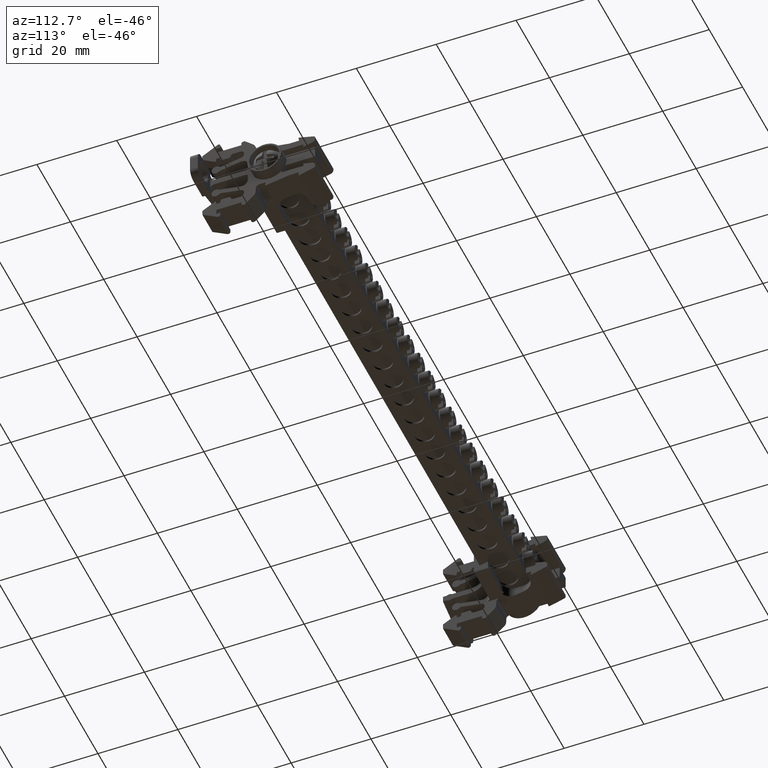
[diagram: clean part render]
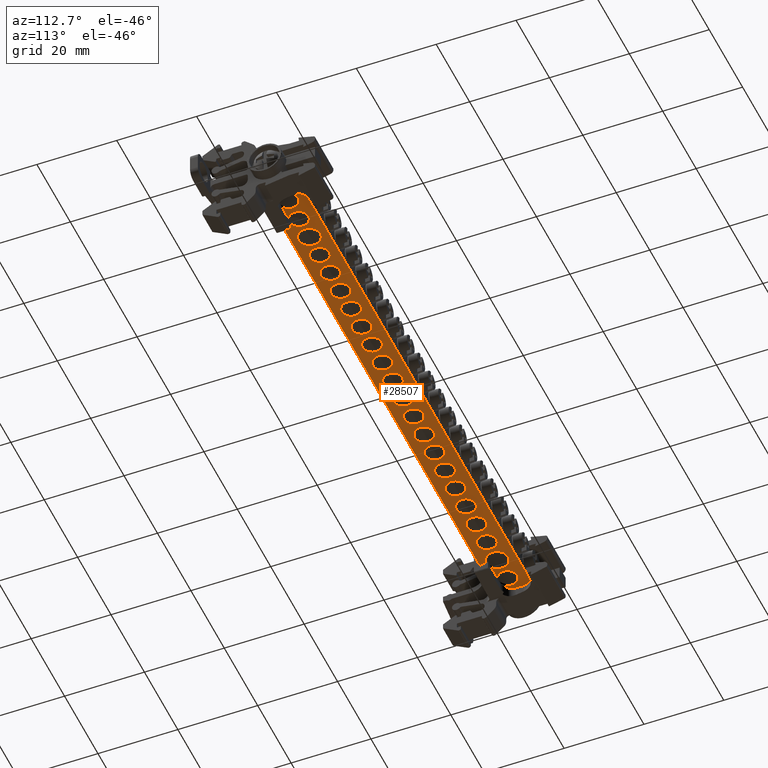
[diagram: same view with one face highlighted and labeled with its STEP entity id]
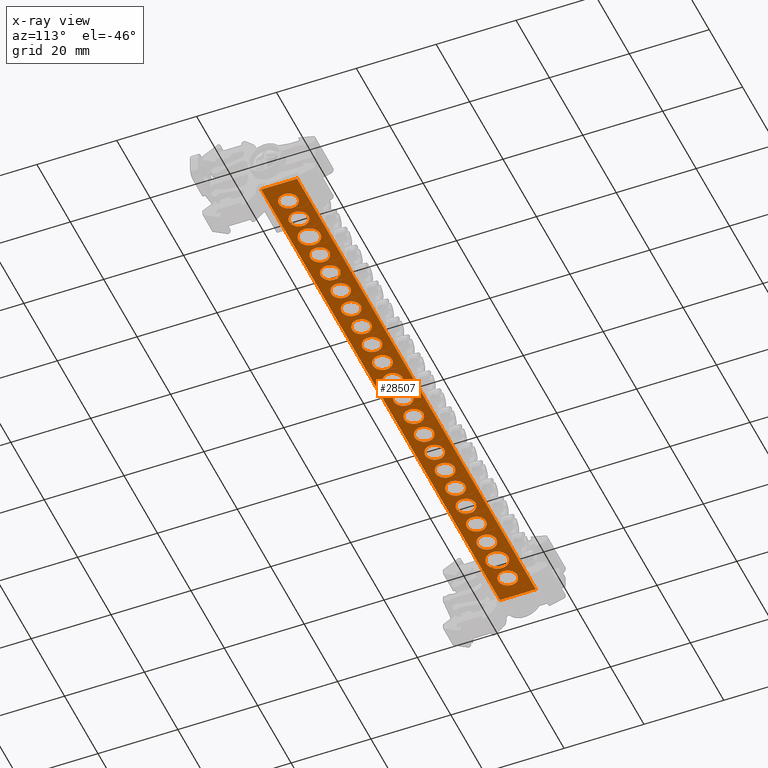
[diagram: x-ray of the same camera — body ghosted, the highlighted face saturated]
A machine part, auxiliary view. The second image highlights one B-rep face of the part: STEP entity #28507.
The next image is the same camera in x-ray: the body ghosted, the highlighted face saturated — about 0% of this face is hidden behind the body in this view.
In plain terms, the highlighted planar face has unit normal (-0, -0, 1).
Its self-contained STEP definition (entity closure, byte-faithful):
#603 = CIRCLE ( 'NONE', #628, 2.399999999999999500 ) ;
#628 = AXIS2_PLACEMENT_3D ( 'NONE', #18632, #18640, #18564 ) ;
#632 = CIRCLE ( 'NONE', #804, 2.399999999999999500 ) ;
#696 = CIRCLE ( 'NONE', #776, 2.750000000000002700 ) ;
#776 = AXIS2_PLACEMENT_3D ( 'NONE', #18820, #18838, #18765 ) ;
#804 = AXIS2_PLACEMENT_3D ( 'NONE', #18784, #18850, #18852 ) ;
#1010 = CIRCLE ( 'NONE', #1012, 2.399999999999999500 ) ;
#1012 = AXIS2_PLACEMENT_3D ( 'NONE', #11360, #11301, #11358 ) ;
#1035 = CIRCLE ( 'NONE', #1036, 2.399999999999999500 ) ;
#1036 = AXIS2_PLACEMENT_3D ( 'NONE', #11371, #11386, #11368 ) ;
#1047 = CIRCLE ( 'NONE', #1049, 2.399999999999999500 ) ;
#1049 = AXIS2_PLACEMENT_3D ( 'NONE', #11403, #11405, #11406 ) ;
#1055 = CIRCLE ( 'NONE', #1056, 2.399999999999999500 ) ;
#1056 = AXIS2_PLACEMENT_3D ( 'NONE', #11382, #11422, #11384 ) ;
#1060 = AXIS2_PLACEMENT_3D ( 'NONE', #11394, #11396, #11398 ) ;
#1061 = CIRCLE ( 'NONE', #1060, 2.399999999999999500 ) ;
#1071 = AXIS2_PLACEMENT_3D ( 'NONE', #11483, #11464, #11427 ) ;
#1089 = CIRCLE ( 'NONE', #1071, 2.399999999999999500 ) ;
#1117 = CIRCLE ( 'NONE', #1134, 2.399999999999999500 ) ;
#1126 = AXIS2_PLACEMENT_3D ( 'NONE', #18243, #18215, #18231 ) ;
#1134 = AXIS2_PLACEMENT_3D ( 'NONE', #18210, #18163, #18208 ) ;
#1135 = CIRCLE ( 'NONE', #1126, 2.399999999999999500 ) ;
#1164 = CIRCLE ( 'NONE', #1170, 2.399999999999999500 ) ;
#1165 = AXIS2_PLACEMENT_3D ( 'NONE', #18546, #18555, #18501 ) ;
#1167 = AXIS2_PLACEMENT_3D ( 'NONE', #18304, #18311, #18315 ) ;
#1168 = CIRCLE ( 'NONE', #1192, 2.399999999999999500 ) ;
#1169 = CIRCLE ( 'NONE', #1199, 2.399999999999999500 ) ;
#1170 = AXIS2_PLACEMENT_3D ( 'NONE', #18424, #18451, #18445 ) ;
#1182 = AXIS2_PLACEMENT_3D ( 'NONE', #18449, #18464, #18452 ) ;
#1183 = CIRCLE ( 'NONE', #1167, 2.399999999999999500 ) ;
#1187 = CIRCLE ( 'NONE', #1165, 2.399999999999999500 ) ;
#1192 = AXIS2_PLACEMENT_3D ( 'NONE', #18495, #18470, #18534 ) ;
#1193 = CIRCLE ( 'NONE', #1194, 2.399999999999999500 ) ;
#1194 = AXIS2_PLACEMENT_3D ( 'NONE', #18507, #18471, #18514 ) ;
#1197 = CIRCLE ( 'NONE', #1182, 2.399999999999999500 ) ;
#1199 = AXIS2_PLACEMENT_3D ( 'NONE', #18340, #18341, #18346 ) ;
#1204 = CIRCLE ( 'NONE', #1209, 2.399999999999999500 ) ;
#1209 = AXIS2_PLACEMENT_3D ( 'NONE', #18404, #18391, #18378 ) ;
#1223 = VECTOR ( 'NONE', #20066, 1000.000000000000000 ) ;
#1499 = FACE_BOUND ( 'NONE', #10068, .T. ) ;
#1501 = FACE_BOUND ( 'NONE', #10067, .T. ) ;
#1503 = CARTESIAN_POINT ( 'NONE',  ( -153.6716458143864900, -90.50918132484950700, 212.7213441700660000 ) ) ;
#1504 = FACE_BOUND ( 'NONE', #10109, .T. ) ;
#1506 = FACE_BOUND ( 'NONE', #10156, .T. ) ;
#1516 = FACE_BOUND ( 'NONE', #10051, .T. ) ;
#1517 = FACE_BOUND ( 'NONE', #10094, .T. ) ;
#1522 = FACE_BOUND ( 'NONE', #10060, .T. ) ;
#1525 = DIRECTION ( 'NONE',  ( 0.0000000000000000000, -1.000000000000000000, -1.302291607885310100E-013 ) ) ;
#1527 = FACE_BOUND ( 'NONE', #10111, .T. ) ;
#1528 = FACE_BOUND ( 'NONE', #10089, .T. ) ;
#1530 = FACE_BOUND ( 'NONE', #10090, .T. ) ;
#1531 = FACE_BOUND ( 'NONE', #10144, .T. ) ;
#1532 = FACE_BOUND ( 'NONE', #10072, .T. ) ;
#1533 = FACE_BOUND ( 'NONE', #10092, .T. ) ;
#1534 = FACE_OUTER_BOUND ( 'NONE', #10079, .T. ) ;
#1535 = FACE_BOUND ( 'NONE', #10137, .T. ) ;
#1536 = DIRECTION ( 'NONE',  ( -2.356061070560432900E-015, -1.302291607885310100E-013, 1.000000000000000000 ) ) ;
#1537 = FACE_BOUND ( 'NONE', #10099, .T. ) ;
#1538 = FACE_BOUND ( 'NONE', #10075, .T. ) ;
#1540 = FACE_BOUND ( 'NONE', #10049, .T. ) ;
#1541 = PLANE ( 'NONE',  #9415 ) ;
#1542 = FACE_BOUND ( 'NONE', #10118, .T. ) ;
#1543 = FACE_BOUND ( 'NONE', #10103, .T. ) ;
#1545 = FACE_BOUND ( 'NONE', #10134, .T. ) ;
#1546 = FACE_BOUND ( 'NONE', #10041, .T. ) ;
#1548 = FACE_BOUND ( 'NONE', #10036, .T. ) ;
#2193 = CARTESIAN_POINT ( 'NONE',  ( -144.5716458143864400, -92.70918132484997900, 212.7213441700657200 ) ) ;
#2336 = CARTESIAN_POINT ( 'NONE',  ( -175.8216458143864700, -92.70918132484975200, 212.7213441700652900 ) ) ;
#2345 = CARTESIAN_POINT ( 'NONE',  ( -163.3216458143865300, -92.70918132484997900, 212.7213441700656900 ) ) ;
#2352 = CARTESIAN_POINT ( 'NONE',  ( -175.8216458143864700, -97.50918132484974900, 212.7213441700647000 ) ) ;
#2360 = CARTESIAN_POINT ( 'NONE',  ( -150.8216458143864400, -92.70918132484997900, 212.7213441700657200 ) ) ;
#2366 = CARTESIAN_POINT ( 'NONE',  ( -150.8216458143864400, -97.50918132484997600, 212.7213441700650900 ) ) ;
#2380 = CARTESIAN_POINT ( 'NONE',  ( -144.5716458143864400, -97.50918132484997600, 212.7213441700650900 ) ) ;
#2389 = CARTESIAN_POINT ( 'NONE',  ( -157.0716458143864400, -97.50918132484997600, 212.7213441700650700 ) ) ;
#2390 = CARTESIAN_POINT ( 'NONE',  ( -169.5716458143864700, -97.50918132484997600, 212.7213441700650400 ) ) ;
#2405 = CARTESIAN_POINT ( 'NONE',  ( -163.3216458143865300, -97.50918132484997600, 212.7213441700650700 ) ) ;
#2419 = CARTESIAN_POINT ( 'NONE',  ( -169.5716458143864700, -92.70918132484997900, 212.7213441700656600 ) ) ;
#2424 = CARTESIAN_POINT ( 'NONE',  ( -57.47164581438637800, -99.50797067425409600, 212.7213441700650400 ) ) ;
#2425 = CARTESIAN_POINT ( 'NONE',  ( -69.94164581438647600, -99.50797067425419600, 212.7213441700650400 ) ) ;
#2436 = CARTESIAN_POINT ( 'NONE',  ( -157.0716458143864400, -92.70918132484997900, 212.7213441700656900 ) ) ;
#4923 = VECTOR ( 'NONE', #19623, 1000.000000000000000 ) ;
#5017 = CIRCLE ( 'NONE', #5049, 2.399999999999999500 ) ;
#5020 = AXIS2_PLACEMENT_3D ( 'NONE', #22537, #22519, #22512 ) ;
#5022 = CIRCLE ( 'NONE', #5031, 2.399999999999999500 ) ;
#5031 = AXIS2_PLACEMENT_3D ( 'NONE', #22619, #22618, #22621 ) ;
#5040 = CIRCLE ( 'NONE', #5041, 2.399999999999999500 ) ;
#5041 = AXIS2_PLACEMENT_3D ( 'NONE', #22603, #22606, #22616 ) ;
#5045 = AXIS2_PLACEMENT_3D ( 'NONE', #22556, #22557, #22558 ) ;
#5049 = AXIS2_PLACEMENT_3D ( 'NONE', #22547, #22573, #22586 ) ;
#5053 = CIRCLE ( 'NONE', #5020, 2.399999999999999500 ) ;
#5059 = CIRCLE ( 'NONE', #5071, 2.399999999999999500 ) ;
#5064 = CIRCLE ( 'NONE', #5091, 2.399999999999999500 ) ;
#5071 = AXIS2_PLACEMENT_3D ( 'NONE', #22587, #22596, #22599 ) ;
#5073 = CIRCLE ( 'NONE', #5045, 2.399999999999999500 ) ;
#5081 = CIRCLE ( 'NONE', #5082, 2.399999999999999500 ) ;
#5082 = AXIS2_PLACEMENT_3D ( 'NONE', #21644, #21643, #21645 ) ;
#5088 = CIRCLE ( 'NONE', #5094, 2.399999999999999500 ) ;
#5091 = AXIS2_PLACEMENT_3D ( 'NONE', #19629, #19608, #19590 ) ;
#5092 = CIRCLE ( 'NONE', #5143, 2.399999999999999500 ) ;
#5094 = AXIS2_PLACEMENT_3D ( 'NONE', #21609, #21616, #21619 ) ;
#5097 = CIRCLE ( 'NONE', #5099, 2.399999999999999500 ) ;
#5099 = AXIS2_PLACEMENT_3D ( 'NONE', #21694, #21665, #21661 ) ;
#5100 = AXIS2_PLACEMENT_3D ( 'NONE', #21680, #21692, #21715 ) ;
#5101 = CIRCLE ( 'NONE', #5136, 2.399999999999999500 ) ;
#5113 = CIRCLE ( 'NONE', #5100, 2.399999999999999500 ) ;
#5116 = VECTOR ( 'NONE', #21668, 1000.000000000000000 ) ;
#5117 = CIRCLE ( 'NONE', #5118, 2.399999999999999500 ) ;
#5118 = AXIS2_PLACEMENT_3D ( 'NONE', #21718, #21719, #21720 ) ;
#5119 = CIRCLE ( 'NONE', #5137, 2.399999999999999500 ) ;
#5122 = CIRCLE ( 'NONE', #5123, 2.399999999999999500 ) ;
#5123 = AXIS2_PLACEMENT_3D ( 'NONE', #21756, #21741, #21769 ) ;
#5130 = AXIS2_PLACEMENT_3D ( 'NONE', #21691, #21676, #21686 ) ;
#5132 = CIRCLE ( 'NONE', #5130, 2.750000000000002700 ) ;
#5134 = VECTOR ( 'NONE', #21700, 1000.000000000000000 ) ;
#5136 = AXIS2_PLACEMENT_3D ( 'NONE', #21726, #21724, #21729 ) ;
#5137 = AXIS2_PLACEMENT_3D ( 'NONE', #21767, #21758, #21761 ) ;
#5143 = AXIS2_PLACEMENT_3D ( 'NONE', #21624, #21653, #21650 ) ;
#5152 = CIRCLE ( 'NONE', #5187, 2.750000000000002700 ) ;
#5162 = VECTOR ( 'NONE', #21817, 1000.000000000000000 ) ;
#5164 = CIRCLE ( 'NONE', #5183, 2.399999999999999500 ) ;
#5167 = VECTOR ( 'NONE', #21991, 1000.000000000000000 ) ;
#5174 = VECTOR ( 'NONE', #21965, 1000.000000000000000 ) ;
#5183 = AXIS2_PLACEMENT_3D ( 'NONE', #21835, #21849, #21871 ) ;
#5187 = AXIS2_PLACEMENT_3D ( 'NONE', #21786, #21811, #21802 ) ;
#5190 = CIRCLE ( 'NONE', #5201, 2.399999999999999500 ) ;
#5191 = VECTOR ( 'NONE', #21750, 1000.000000000000000 ) ;
#5192 = CIRCLE ( 'NONE', #5199, 2.399999999999999500 ) ;
#5194 = VECTOR ( 'NONE', #21781, 1000.000000000000000 ) ;
#5196 = CIRCLE ( 'NONE', #5202, 2.399999999999999500 ) ;
#5199 = AXIS2_PLACEMENT_3D ( 'NONE', #21787, #21812, #21818 ) ;
#5201 = AXIS2_PLACEMENT_3D ( 'NONE', #21763, #21764, #21773 ) ;
#5202 = AXIS2_PLACEMENT_3D ( 'NONE', #21873, #21866, #21831 ) ;
#5203 = VECTOR ( 'NONE', #21890, 1000.000000000000000 ) ;
#7173 = VERTEX_POINT ( 'NONE', #21377 ) ;
#7191 = VERTEX_POINT ( 'NONE', #21392 ) ;
#7529 = VERTEX_POINT ( 'NONE', #22712 ) ;
#7671 = VERTEX_POINT ( 'NONE', #28071 ) ;
#7920 = VERTEX_POINT ( 'NONE', #12173 ) ;
#7937 = VERTEX_POINT ( 'NONE', #12160 ) ;
#7938 = VERTEX_POINT ( 'NONE', #12125 ) ;
#7945 = VERTEX_POINT ( 'NONE', #12156 ) ;
#9415 = AXIS2_PLACEMENT_3D ( 'NONE', #1503, #1536, #1525 ) ;
#10036 = EDGE_LOOP ( 'NONE', ( #27157, #27155 ) ) ;
#10041 = EDGE_LOOP ( 'NONE', ( #27118, #27196 ) ) ;
#10049 = EDGE_LOOP ( 'NONE', ( #27151, #27209 ) ) ;
#10051 = EDGE_LOOP ( 'NONE', ( #27190, #27215 ) ) ;
#10060 = EDGE_LOOP ( 'NONE', ( #27223, #27188 ) ) ;
#10067 = EDGE_LOOP ( 'NONE', ( #27140, #27162 ) ) ;
#10068 = EDGE_LOOP ( 'NONE', ( #27142, #27136 ) ) ;
#10072 = EDGE_LOOP ( 'NONE', ( #27132, #27221 ) ) ;
#10075 = EDGE_LOOP ( 'NONE', ( #27111, #27218 ) ) ;
#10079 = EDGE_LOOP ( 'NONE', ( #26939, #27059, #27050, #27113, #27105, #27057, #26941, #27069, #27029, #27042 ) ) ;
#10089 = EDGE_LOOP ( 'NONE', ( #27147, #27116 ) ) ;
#10090 = EDGE_LOOP ( 'NONE', ( #27229, #27186 ) ) ;
#10092 = EDGE_LOOP ( 'NONE', ( #27153, #27192 ) ) ;
#10094 = EDGE_LOOP ( 'NONE', ( #27225, #27211 ) ) ;
#10099 = EDGE_LOOP ( 'NONE', ( #27130, #27205 ) ) ;
#10103 = EDGE_LOOP ( 'NONE', ( #27160, #27217 ) ) ;
#10109 = EDGE_LOOP ( 'NONE', ( #27158, #27184 ) ) ;
#10111 = EDGE_LOOP ( 'NONE', ( #27172, #27198 ) ) ;
#10118 = EDGE_LOOP ( 'NONE', ( #27027, #27207 ) ) ;
#10134 = EDGE_LOOP ( 'NONE', ( #27120, #27134 ) ) ;
#10137 = EDGE_LOOP ( 'NONE', ( #27165, #27201 ) ) ;
#10144 = EDGE_LOOP ( 'NONE', ( #27171, #27203 ) ) ;
#10156 = EDGE_LOOP ( 'NONE', ( #27167, #27145 ) ) ;
#11301 = DIRECTION ( 'NONE',  ( 2.356061070560435300E-015, 1.300071161836058300E-013, -1.000000000000000000 ) ) ;
#11358 = DIRECTION ( 'NONE',  ( 0.0000000000000000000, 1.000000000000000000, 1.272130549049658700E-013 ) ) ;
#11360 = CARTESIAN_POINT ( 'NONE',  ( -163.3216458143865300, -95.10918132484998500, 212.7213441700653800 ) ) ;
#11368 = DIRECTION ( 'NONE',  ( 0.0000000000000000000, 1.000000000000000000, 1.272130549049658700E-013 ) ) ;
#11371 = CARTESIAN_POINT ( 'NONE',  ( -100.8216458143864000, -95.10918132484998500, 212.7213441700655200 ) ) ;
#11382 = CARTESIAN_POINT ( 'NONE',  ( -125.8216458143864300, -95.10918132484998500, 212.7213441700654600 ) ) ;
#11384 = DIRECTION ( 'NONE',  ( 0.0000000000000000000, 1.000000000000000000, 1.272130549049658700E-013 ) ) ;
#11386 = DIRECTION ( 'NONE',  ( 2.356061070560435300E-015, 1.300071161836058300E-013, -1.000000000000000000 ) ) ;
#11394 = CARTESIAN_POINT ( 'NONE',  ( -150.8216458143864400, -95.10918132484998500, 212.7213441700654100 ) ) ;
#11396 = DIRECTION ( 'NONE',  ( 2.356061070560435300E-015, 1.300071161836058300E-013, -1.000000000000000000 ) ) ;
#11398 = DIRECTION ( 'NONE',  ( 0.0000000000000000000, 1.000000000000000000, 1.272130549049658700E-013 ) ) ;
#11403 = CARTESIAN_POINT ( 'NONE',  ( -157.0716458143864400, -95.10918132484998500, 212.7213441700653800 ) ) ;
#11405 = DIRECTION ( 'NONE',  ( 2.356061070560435300E-015, 1.300071161836058300E-013, -1.000000000000000000 ) ) ;
#11406 = DIRECTION ( 'NONE',  ( 0.0000000000000000000, 1.000000000000000000, 1.272130549049658700E-013 ) ) ;
#11422 = DIRECTION ( 'NONE',  ( 2.356061070560435300E-015, 1.300071161836058300E-013, -1.000000000000000000 ) ) ;
#11427 = DIRECTION ( 'NONE',  ( 0.0000000000000000000, 1.000000000000000000, 1.272130549049658700E-013 ) ) ;
#11464 = DIRECTION ( 'NONE',  ( 2.356061070560435300E-015, 1.300071161836058300E-013, -1.000000000000000000 ) ) ;
#11483 = CARTESIAN_POINT ( 'NONE',  ( -144.5716458143864400, -95.10918132484998500, 212.7213441700654100 ) ) ;
#12125 = CARTESIAN_POINT ( 'NONE',  ( -200.4116458143864500, -90.50918132484976300, 212.7213441700658600 ) ) ;
#12156 = CARTESIAN_POINT ( 'NONE',  ( -57.47164581438646300, -90.50918132484878200, 212.7213441700661700 ) ) ;
#12160 = CARTESIAN_POINT ( 'NONE',  ( -200.4116458143864200, -99.50797067425561700, 212.7213441700647300 ) ) ;
#12173 = CARTESIAN_POINT ( 'NONE',  ( -187.9416458143863100, -99.50797067425554600, 212.7213441700647300 ) ) ;
#14819 = CARTESIAN_POINT ( 'NONE',  ( -132.0716458143864400, -97.50918132484997600, 212.7213441700651200 ) ) ;
#14832 = CARTESIAN_POINT ( 'NONE',  ( -75.82164581438638600, -97.85918132484964400, 212.7213441700651200 ) ) ;
#14833 = CARTESIAN_POINT ( 'NONE',  ( -100.8216458143864000, -92.70918132484997900, 212.7213441700658300 ) ) ;
#14836 = CARTESIAN_POINT ( 'NONE',  ( -69.57164581438648600, -92.70918132484965200, 212.7213441700652900 ) ) ;
#14842 = CARTESIAN_POINT ( 'NONE',  ( -107.0716458143864100, -92.70918132484997900, 212.7213441700658100 ) ) ;
#14849 = CARTESIAN_POINT ( 'NONE',  ( -94.57164581438640000, -97.50918132484997600, 212.7213441700652100 ) ) ;
#14859 = CARTESIAN_POINT ( 'NONE',  ( -82.07164581438648600, -97.50918132484974900, 212.7213441700647000 ) ) ;
#14872 = CARTESIAN_POINT ( 'NONE',  ( -182.0716458143864700, -97.50918132484987700, 212.7213441700647000 ) ) ;
#14873 = CARTESIAN_POINT ( 'NONE',  ( -113.3216458143864100, -92.70918132484997900, 212.7213441700658100 ) ) ;
#14878 = CARTESIAN_POINT ( 'NONE',  ( -125.8216458143864300, -97.50918132484997600, 212.7213441700651500 ) ) ;
#14879 = CARTESIAN_POINT ( 'NONE',  ( -88.32164581438642900, -97.50918132484997600, 212.7213441700652400 ) ) ;
#14880 = CARTESIAN_POINT ( 'NONE',  ( -132.0716458143864400, -92.70918132484997900, 212.7213441700657500 ) ) ;
#14881 = CARTESIAN_POINT ( 'NONE',  ( -88.32164581438642900, -92.70918132484997900, 212.7213441700658600 ) ) ;
#14884 = CARTESIAN_POINT ( 'NONE',  ( -119.5716458143864300, -92.70918132484997900, 212.7213441700657800 ) ) ;
#14885 = CARTESIAN_POINT ( 'NONE',  ( -75.82164581438638600, -92.35918132484964400, 212.7213441700658600 ) ) ;
#14890 = CARTESIAN_POINT ( 'NONE',  ( -194.5716458143863900, -92.70918132484995100, 212.7213441700652900 ) ) ;
#14891 = CARTESIAN_POINT ( 'NONE',  ( -94.57164581438640000, -92.70918132484997900, 212.7213441700658300 ) ) ;
#14892 = CARTESIAN_POINT ( 'NONE',  ( -63.32164581438638600, -92.70918132484955300, 212.7213441700658100 ) ) ;
#14893 = CARTESIAN_POINT ( 'NONE',  ( -100.8216458143864000, -97.50918132484997600, 212.7213441700652100 ) ) ;
#14894 = CARTESIAN_POINT ( 'NONE',  ( -138.3216458143864400, -97.50918132484997600, 212.7213441700651200 ) ) ;
#14897 = CARTESIAN_POINT ( 'NONE',  ( -194.5716458143863900, -97.50918132484994800, 212.7213441700647000 ) ) ;
#14898 = CARTESIAN_POINT ( 'NONE',  ( -138.3216458143864400, -92.70918132484997900, 212.7213441700657500 ) ) ;
#14905 = CARTESIAN_POINT ( 'NONE',  ( -107.0716458143864100, -97.50918132484997600, 212.7213441700651800 ) ) ;
#14908 = CARTESIAN_POINT ( 'NONE',  ( -188.3216458143864700, -97.85918132484988500, 212.7213441700646400 ) ) ;
#14910 = CARTESIAN_POINT ( 'NONE',  ( -82.07164581438648600, -92.70918132484975200, 212.7213441700652900 ) ) ;
#14911 = CARTESIAN_POINT ( 'NONE',  ( -182.0716458143864700, -92.70918132484988000, 212.7213441700652900 ) ) ;
#14913 = CARTESIAN_POINT ( 'NONE',  ( -113.3216458143864100, -97.50918132484997600, 212.7213441700651800 ) ) ;
#14918 = CARTESIAN_POINT ( 'NONE',  ( -119.5716458143864300, -97.50918132484997600, 212.7213441700651500 ) ) ;
#14922 = CARTESIAN_POINT ( 'NONE',  ( -188.3216458143864700, -92.35918132484988500, 212.7213441700653500 ) ) ;
#14926 = CARTESIAN_POINT ( 'NONE',  ( -69.57164581438648600, -97.50918132484964900, 212.7213441700647000 ) ) ;
#14927 = CARTESIAN_POINT ( 'NONE',  ( -125.8216458143864300, -92.70918132484997900, 212.7213441700657800 ) ) ;
#14936 = CARTESIAN_POINT ( 'NONE',  ( -63.32164581438638600, -97.50918132484955000, 212.7213441700651800 ) ) ;
#16284 = VERTEX_POINT ( 'NONE', #14832 ) ;
#16291 = VERTEX_POINT ( 'NONE', #14859 ) ;
#16304 = VERTEX_POINT ( 'NONE', #14833 ) ;
#16305 = VERTEX_POINT ( 'NONE', #14836 ) ;
#16312 = VERTEX_POINT ( 'NONE', #14842 ) ;
#16313 = VERTEX_POINT ( 'NONE', #14849 ) ;
#16315 = VERTEX_POINT ( 'NONE', #14819 ) ;
#16341 = VERTEX_POINT ( 'NONE', #14892 ) ;
#16342 = VERTEX_POINT ( 'NONE', #14878 ) ;
#16343 = VERTEX_POINT ( 'NONE', #14918 ) ;
#16350 = VERTEX_POINT ( 'NONE', #14908 ) ;
#16354 = VERTEX_POINT ( 'NONE', #14881 ) ;
#16355 = VERTEX_POINT ( 'NONE', #14910 ) ;
#16356 = VERTEX_POINT ( 'NONE', #14879 ) ;
#16359 = VERTEX_POINT ( 'NONE', #14893 ) ;
#16362 = VERTEX_POINT ( 'NONE', #14913 ) ;
#16363 = VERTEX_POINT ( 'NONE', #14884 ) ;
#16367 = VERTEX_POINT ( 'NONE', #14926 ) ;
#16368 = VERTEX_POINT ( 'NONE', #14905 ) ;
#16369 = VERTEX_POINT ( 'NONE', #14927 ) ;
#16370 = VERTEX_POINT ( 'NONE', #14872 ) ;
#16372 = VERTEX_POINT ( 'NONE', #14897 ) ;
#16373 = VERTEX_POINT ( 'NONE', #14873 ) ;
#16374 = VERTEX_POINT ( 'NONE', #14885 ) ;
#16375 = VERTEX_POINT ( 'NONE', #14880 ) ;
#16377 = VERTEX_POINT ( 'NONE', #14911 ) ;
#16385 = VERTEX_POINT ( 'NONE', #14898 ) ;
#16387 = VERTEX_POINT ( 'NONE', #14890 ) ;
#16389 = VERTEX_POINT ( 'NONE', #14891 ) ;
#16391 = VERTEX_POINT ( 'NONE', #14894 ) ;
#16394 = VERTEX_POINT ( 'NONE', #14922 ) ;
#16396 = VERTEX_POINT ( 'NONE', #14936 ) ;
#17043 = EDGE_CURVE ( 'NONE', #16377, #16370, #5053, .T. ) ;
#17053 = EDGE_CURVE ( 'NONE', #16375, #16315, #5017, .T. ) ;
#17059 = EDGE_CURVE ( 'NONE', #16355, #16291, #5073, .T. ) ;
#17065 = EDGE_CURVE ( 'NONE', #16389, #16313, #5059, .T. ) ;
#17066 = EDGE_CURVE ( 'NONE', #16387, #16372, #5022, .T. ) ;
#17078 = EDGE_CURVE ( 'NONE', #16369, #16342, #5040, .T. ) ;
#17084 = EDGE_CURVE ( 'NONE', #16312, #16368, #5088, .T. ) ;
#17085 = EDGE_CURVE ( 'NONE', #16373, #16362, #5081, .T. ) ;
#17091 = EDGE_CURVE ( 'NONE', #16363, #16343, #5092, .T. ) ;
#17097 = EDGE_CURVE ( 'NONE', #26612, #26640, #5097, .T. ) ;
#17104 = EDGE_CURVE ( 'NONE', #27477, #7529, #21658, .T. ) ;
#17106 = EDGE_CURVE ( 'NONE', #16394, #16350, #5132, .T. ) ;
#17107 = EDGE_CURVE ( 'NONE', #16305, #16367, #5113, .T. ) ;
#17108 = EDGE_CURVE ( 'NONE', #7938, #7671, #21689, .T. ) ;
#17117 = EDGE_CURVE ( 'NONE', #16354, #16356, #5101, .T. ) ;
#17120 = EDGE_CURVE ( 'NONE', #26662, #26607, #5117, .T. ) ;
#17122 = EDGE_CURVE ( 'NONE', #26611, #26664, #5119, .T. ) ;
#17123 = EDGE_CURVE ( 'NONE', #26669, #26601, #5122, .T. ) ;
#17128 = EDGE_CURVE ( 'NONE', #16385, #16391, #5190, .T. ) ;
#17134 = EDGE_CURVE ( 'NONE', #7671, #7937, #21739, .T. ) ;
#17139 = EDGE_CURVE ( 'NONE', #26189, #26588, #5192, .T. ) ;
#17140 = EDGE_CURVE ( 'NONE', #7937, #7920, #21820, .T. ) ;
#17145 = EDGE_CURVE ( 'NONE', #16374, #16284, #5152, .T. ) ;
#17148 = EDGE_CURVE ( 'NONE', #27522, #27477, #21813, .T. ) ;
#17151 = EDGE_CURVE ( 'NONE', #16304, #16359, #5196, .T. ) ;
#17157 = EDGE_CURVE ( 'NONE', #16341, #16396, #5164, .T. ) ;
#17160 = EDGE_CURVE ( 'NONE', #7191, #7173, #21836, .T. ) ;
#17163 = EDGE_CURVE ( 'NONE', #7529, #7945, #21898, .T. ) ;
#17166 = EDGE_CURVE ( 'NONE', #7938, #7945, #21980, .T. ) ;
#17187 = EDGE_CURVE ( 'NONE', #26641, #26586, #5064, .T. ) ;
#17193 = EDGE_CURVE ( 'NONE', #7920, #7173, #19593, .T. ) ;
#17212 = EDGE_CURVE ( 'NONE', #7191, #27522, #19979, .T. ) ;
#17549 = EDGE_CURVE ( 'NONE', #26664, #26611, #1010, .T. ) ;
#17557 = EDGE_CURVE ( 'NONE', #16359, #16304, #1035, .T. ) ;
#17563 = EDGE_CURVE ( 'NONE', #26607, #26662, #1047, .T. ) ;
#17566 = EDGE_CURVE ( 'NONE', #16342, #16369, #1055, .T. ) ;
#17568 = EDGE_CURVE ( 'NONE', #26640, #26612, #1061, .T. ) ;
#17576 = EDGE_CURVE ( 'NONE', #26588, #26189, #1089, .T. ) ;
#17611 = EDGE_CURVE ( 'NONE', #16315, #16375, #1135, .T. ) ;
#17612 = EDGE_CURVE ( 'NONE', #16368, #16312, #1117, .T. ) ;
#17629 = EDGE_CURVE ( 'NONE', #16291, #16355, #1183, .T. ) ;
#17631 = EDGE_CURVE ( 'NONE', #16356, #16354, #1169, .T. ) ;
#17636 = EDGE_CURVE ( 'NONE', #26586, #26641, #1204, .T. ) ;
#17641 = EDGE_CURVE ( 'NONE', #16313, #16389, #1197, .T. ) ;
#17644 = EDGE_CURVE ( 'NONE', #16391, #16385, #1164, .T. ) ;
#17648 = EDGE_CURVE ( 'NONE', #26601, #26669, #1187, .T. ) ;
#17656 = EDGE_CURVE ( 'NONE', #16367, #16305, #1168, .T. ) ;
#17657 = EDGE_CURVE ( 'NONE', #16343, #16363, #1193, .T. ) ;
#17666 = EDGE_CURVE ( 'NONE', #16362, #16373, #603, .T. ) ;
#17691 = EDGE_CURVE ( 'NONE', #16284, #16374, #696, .T. ) ;
#17693 = EDGE_CURVE ( 'NONE', #16396, #16341, #632, .T. ) ;
#17708 = EDGE_CURVE ( 'NONE', #16370, #16377, #32116, .T. ) ;
#17724 = EDGE_CURVE ( 'NONE', #16372, #16387, #32146, .T. ) ;
#17730 = EDGE_CURVE ( 'NONE', #16350, #16394, #32113, .T. ) ;
#18163 = DIRECTION ( 'NONE',  ( 2.356061070560435300E-015, 1.300071161836058300E-013, -1.000000000000000000 ) ) ;
#18208 = DIRECTION ( 'NONE',  ( 0.0000000000000000000, 1.000000000000000000, 1.272130549049658700E-013 ) ) ;
#18210 = CARTESIAN_POINT ( 'NONE',  ( -107.0716458143864100, -95.10918132484998500, 212.7213441700654900 ) ) ;
#18215 = DIRECTION ( 'NONE',  ( 2.356061070560435300E-015, 1.300071161836058300E-013, -1.000000000000000000 ) ) ;
#18231 = DIRECTION ( 'NONE',  ( 0.0000000000000000000, 1.000000000000000000, 1.272130549049658700E-013 ) ) ;
#18243 = CARTESIAN_POINT ( 'NONE',  ( -132.0716458143864400, -95.10918132484998500, 212.7213441700654400 ) ) ;
#18304 = CARTESIAN_POINT ( 'NONE',  ( -82.07164581438648600, -95.10918132484974300, 212.7213441700650100 ) ) ;
#18311 = DIRECTION ( 'NONE',  ( 2.356061070560435300E-015, 1.299516050323746000E-013, -1.000000000000000000 ) ) ;
#18315 = DIRECTION ( 'NONE',  ( 0.0000000000000000000, 1.000000000000000000, 1.272130549049658700E-013 ) ) ;
#18340 = CARTESIAN_POINT ( 'NONE',  ( -88.32164581438642900, -95.10918132484998500, 212.7213441700655500 ) ) ;
#18341 = DIRECTION ( 'NONE',  ( 2.356061070560435300E-015, 1.300071161836058300E-013, -1.000000000000000000 ) ) ;
#18346 = DIRECTION ( 'NONE',  ( 0.0000000000000000000, 1.000000000000000000, 1.272130549049658700E-013 ) ) ;
#18378 = DIRECTION ( 'NONE',  ( 0.0000000000000000000, 1.000000000000000000, 1.272130549049658700E-013 ) ) ;
#18391 = DIRECTION ( 'NONE',  ( 2.356061070560435300E-015, 1.299516050323746000E-013, -1.000000000000000000 ) ) ;
#18404 = CARTESIAN_POINT ( 'NONE',  ( -175.8216458143864700, -95.10918132484974300, 212.7213441700650100 ) ) ;
#18424 = CARTESIAN_POINT ( 'NONE',  ( -138.3216458143864400, -95.10918132484998500, 212.7213441700654400 ) ) ;
#18445 = DIRECTION ( 'NONE',  ( 0.0000000000000000000, 1.000000000000000000, 1.272130549049658700E-013 ) ) ;
#18449 = CARTESIAN_POINT ( 'NONE',  ( -94.57164581438640000, -95.10918132484998500, 212.7213441700655200 ) ) ;
#18451 = DIRECTION ( 'NONE',  ( 2.356061070560435300E-015, 1.300071161836058300E-013, -1.000000000000000000 ) ) ;
#18452 = DIRECTION ( 'NONE',  ( 0.0000000000000000000, 1.000000000000000000, 1.272130549049658700E-013 ) ) ;
#18464 = DIRECTION ( 'NONE',  ( 2.356061070560435300E-015, 1.300071161836058300E-013, -1.000000000000000000 ) ) ;
#18470 = DIRECTION ( 'NONE',  ( 2.356061070560435300E-015, 1.299516050323746000E-013, -1.000000000000000000 ) ) ;
#18471 = DIRECTION ( 'NONE',  ( 2.356061070560435300E-015, 1.300071161836058300E-013, -1.000000000000000000 ) ) ;
#18495 = CARTESIAN_POINT ( 'NONE',  ( -69.57164581438648600, -95.10918132484964400, 212.7213441700650100 ) ) ;
#18501 = DIRECTION ( 'NONE',  ( 0.0000000000000000000, 1.000000000000000000, 1.272130549049658700E-013 ) ) ;
#18507 = CARTESIAN_POINT ( 'NONE',  ( -119.5716458143864300, -95.10918132484998500, 212.7213441700654600 ) ) ;
#18514 = DIRECTION ( 'NONE',  ( 0.0000000000000000000, 1.000000000000000000, 1.272130549049658700E-013 ) ) ;
#18534 = DIRECTION ( 'NONE',  ( 0.0000000000000000000, 1.000000000000000000, 1.272130549049658700E-013 ) ) ;
#18546 = CARTESIAN_POINT ( 'NONE',  ( -169.5716458143864700, -95.10918132484998500, 212.7213441700653500 ) ) ;
#18555 = DIRECTION ( 'NONE',  ( 2.356061070560435300E-015, 1.300071161836058300E-013, -1.000000000000000000 ) ) ;
#18564 = DIRECTION ( 'NONE',  ( 0.0000000000000000000, 1.000000000000000000, 1.272130549049658700E-013 ) ) ;
#18632 = CARTESIAN_POINT ( 'NONE',  ( -113.3216458143864100, -95.10918132484998500, 212.7213441700654900 ) ) ;
#18640 = DIRECTION ( 'NONE',  ( 2.356061070560435300E-015, 1.300071161836058300E-013, -1.000000000000000000 ) ) ;
#18765 = DIRECTION ( 'NONE',  ( 0.0000000000000000000, 1.000000000000000000, 1.312081756375183700E-013 ) ) ;
#18784 = CARTESIAN_POINT ( 'NONE',  ( -63.32164581438638600, -95.10918132484954400, 212.7213441700654900 ) ) ;
#18820 = CARTESIAN_POINT ( 'NONE',  ( -75.82164581438638600, -95.10918132484964400, 212.7213441700654900 ) ) ;
#18838 = DIRECTION ( 'NONE',  ( 2.356061070560435300E-015, 1.299516050323746000E-013, -1.000000000000000000 ) ) ;
#18850 = DIRECTION ( 'NONE',  ( 2.356061070560435300E-015, 1.299516050323746000E-013, -1.000000000000000000 ) ) ;
#18852 = DIRECTION ( 'NONE',  ( 0.0000000000000000000, 1.000000000000000000, 1.272130549049658700E-013 ) ) ;
#18863 = DIRECTION ( 'NONE',  ( 2.356061070560435300E-015, 1.299516050323746000E-013, -1.000000000000000000 ) ) ;
#18873 = DIRECTION ( 'NONE',  ( 0.0000000000000000000, 1.000000000000000000, 1.272130549049658700E-013 ) ) ;
#18898 = CARTESIAN_POINT ( 'NONE',  ( -182.0716458143864700, -95.10918132484988500, 212.7213441700650100 ) ) ;
#18980 = DIRECTION ( 'NONE',  ( 2.356061070560435300E-015, 1.299516050323746000E-013, -1.000000000000000000 ) ) ;
#19001 = CARTESIAN_POINT ( 'NONE',  ( -194.5716458143863900, -95.10918132484995600, 212.7213441700650100 ) ) ;
#19004 = DIRECTION ( 'NONE',  ( 0.0000000000000000000, 1.000000000000000000, 1.272130549049658700E-013 ) ) ;
#19049 = CARTESIAN_POINT ( 'NONE',  ( -188.3216458143864700, -95.10918132484988500, 212.7213441700650100 ) ) ;
#19071 = DIRECTION ( 'NONE',  ( 0.0000000000000000000, 1.000000000000000000, 1.312081756375183700E-013 ) ) ;
#19135 = DIRECTION ( 'NONE',  ( 2.356061070560435300E-015, 1.299516050323746000E-013, -1.000000000000000000 ) ) ;
#19590 = DIRECTION ( 'NONE',  ( 0.0000000000000000000, 1.000000000000000000, 1.272130549049658700E-013 ) ) ;
#19593 = LINE ( 'NONE', #19621, #4923 ) ;
#19608 = DIRECTION ( 'NONE',  ( 2.356061070560435300E-015, 1.299516050323746000E-013, -1.000000000000000000 ) ) ;
#19621 = CARTESIAN_POINT ( 'NONE',  ( -187.9416458143863100, -98.58637067425554800, 212.7213441700647300 ) ) ;
#19623 = DIRECTION ( 'NONE',  ( 1.104054362957800100E-014, -1.000000000000000000, -0.0000000000000000000 ) ) ;
#19629 = CARTESIAN_POINT ( 'NONE',  ( -175.8216458143864700, -95.10918132484974300, 212.7213441700650100 ) ) ;
#19979 = LINE ( 'NONE', #20064, #1223 ) ;
#20064 = CARTESIAN_POINT ( 'NONE',  ( -69.94164581438649000, -98.58637067425429700, 212.7213441700650400 ) ) ;
#20066 = DIRECTION ( 'NONE',  ( -1.100161628464490100E-014, 1.000000000000000000, -0.0000000000000000000 ) ) ;
#21377 = CARTESIAN_POINT ( 'NONE',  ( -187.9416458143863100, -99.50918132484987700, 212.7213441700649000 ) ) ;
#21392 = CARTESIAN_POINT ( 'NONE',  ( -69.94164581438647600, -99.50918132484858300, 212.7213441700650400 ) ) ;
#21609 = CARTESIAN_POINT ( 'NONE',  ( -107.0716458143864100, -95.10918132484998500, 212.7213441700654900 ) ) ;
#21616 = DIRECTION ( 'NONE',  ( 2.356061070560435300E-015, 1.300071161836058300E-013, -1.000000000000000000 ) ) ;
#21619 = DIRECTION ( 'NONE',  ( 0.0000000000000000000, 1.000000000000000000, 1.272130549049658700E-013 ) ) ;
#21624 = CARTESIAN_POINT ( 'NONE',  ( -119.5716458143864300, -95.10918132484998500, 212.7213441700654600 ) ) ;
#21643 = DIRECTION ( 'NONE',  ( 2.356061070560435300E-015, 1.300071161836058300E-013, -1.000000000000000000 ) ) ;
#21644 = CARTESIAN_POINT ( 'NONE',  ( -113.3216458143864100, -95.10918132484998500, 212.7213441700654900 ) ) ;
#21645 = DIRECTION ( 'NONE',  ( 0.0000000000000000000, 1.000000000000000000, 1.272130549049658700E-013 ) ) ;
#21650 = DIRECTION ( 'NONE',  ( 0.0000000000000000000, 1.000000000000000000, 1.272130549049658700E-013 ) ) ;
#21653 = DIRECTION ( 'NONE',  ( 2.356061070560435300E-015, 1.300071161836058300E-013, -1.000000000000000000 ) ) ;
#21658 = LINE ( 'NONE', #21684, #5116 ) ;
#21661 = DIRECTION ( 'NONE',  ( 0.0000000000000000000, 1.000000000000000000, 1.272130549049658700E-013 ) ) ;
#21665 = DIRECTION ( 'NONE',  ( 2.356061070560435300E-015, 1.300071161836058300E-013, -1.000000000000000000 ) ) ;
#21668 = DIRECTION ( 'NONE',  ( -0.0000000000000000000, 1.000000000000000000, 1.302291607885310100E-013 ) ) ;
#21671 = CARTESIAN_POINT ( 'NONE',  ( -200.4116458143864500, -90.50918132484950700, 212.7213441700658900 ) ) ;
#21676 = DIRECTION ( 'NONE',  ( 2.356061070560435300E-015, 1.299516050323746000E-013, -1.000000000000000000 ) ) ;
#21680 = CARTESIAN_POINT ( 'NONE',  ( -69.57164581438648600, -95.10918132484964400, 212.7213441700650100 ) ) ;
#21684 = CARTESIAN_POINT ( 'NONE',  ( -57.47164581438637800, -90.50918132484950700, 212.7213441700662300 ) ) ;
#21686 = DIRECTION ( 'NONE',  ( 0.0000000000000000000, 1.000000000000000000, 1.312081756375183700E-013 ) ) ;
#21689 = LINE ( 'NONE', #21671, #5134 ) ;
#21691 = CARTESIAN_POINT ( 'NONE',  ( -188.3216458143864700, -95.10918132484988500, 212.7213441700650100 ) ) ;
#21692 = DIRECTION ( 'NONE',  ( 2.356061070560435300E-015, 1.299516050323746000E-013, -1.000000000000000000 ) ) ;
#21694 = CARTESIAN_POINT ( 'NONE',  ( -150.8216458143864400, -95.10918132484998500, 212.7213441700654100 ) ) ;
#21700 = DIRECTION ( 'NONE',  ( 0.0000000000000000000, -1.000000000000000000, -1.302291607885310100E-013 ) ) ;
#21715 = DIRECTION ( 'NONE',  ( 0.0000000000000000000, 1.000000000000000000, 1.272130549049658700E-013 ) ) ;
#21718 = CARTESIAN_POINT ( 'NONE',  ( -157.0716458143864400, -95.10918132484998500, 212.7213441700653800 ) ) ;
#21719 = DIRECTION ( 'NONE',  ( 2.356061070560435300E-015, 1.300071161836058300E-013, -1.000000000000000000 ) ) ;
#21720 = DIRECTION ( 'NONE',  ( 0.0000000000000000000, 1.000000000000000000, 1.272130549049658700E-013 ) ) ;
#21724 = DIRECTION ( 'NONE',  ( 2.356061070560435300E-015, 1.300071161836058300E-013, -1.000000000000000000 ) ) ;
#21726 = CARTESIAN_POINT ( 'NONE',  ( -88.32164581438642900, -95.10918132484998500, 212.7213441700655500 ) ) ;
#21729 = DIRECTION ( 'NONE',  ( 0.0000000000000000000, 1.000000000000000000, 1.272130549049658700E-013 ) ) ;
#21739 = LINE ( 'NONE', #21746, #5191 ) ;
#21741 = DIRECTION ( 'NONE',  ( 2.356061070560435300E-015, 1.300071161836058300E-013, -1.000000000000000000 ) ) ;
#21746 = CARTESIAN_POINT ( 'NONE',  ( -200.4116458143864500, -90.50918132484950700, 212.7213441700658900 ) ) ;
#21750 = DIRECTION ( 'NONE',  ( 0.0000000000000000000, -1.000000000000000000, -1.302291607885310100E-013 ) ) ;
#21756 = CARTESIAN_POINT ( 'NONE',  ( -169.5716458143864700, -95.10918132484998500, 212.7213441700653500 ) ) ;
#21758 = DIRECTION ( 'NONE',  ( 2.356061070560435300E-015, 1.300071161836058300E-013, -1.000000000000000000 ) ) ;
#21761 = DIRECTION ( 'NONE',  ( 0.0000000000000000000, 1.000000000000000000, 1.272130549049658700E-013 ) ) ;
#21763 = CARTESIAN_POINT ( 'NONE',  ( -138.3216458143864400, -95.10918132484998500, 212.7213441700654400 ) ) ;
#21764 = DIRECTION ( 'NONE',  ( 2.356061070560435300E-015, 1.300071161836058300E-013, -1.000000000000000000 ) ) ;
#21767 = CARTESIAN_POINT ( 'NONE',  ( -163.3216458143865300, -95.10918132484998500, 212.7213441700653800 ) ) ;
#21769 = DIRECTION ( 'NONE',  ( 0.0000000000000000000, 1.000000000000000000, 1.272130549049658700E-013 ) ) ;
#21773 = DIRECTION ( 'NONE',  ( 0.0000000000000000000, 1.000000000000000000, 1.272130549049658700E-013 ) ) ;
#21781 = DIRECTION ( 'NONE',  ( 1.000000000000000000, -3.068278559856131500E-028, 2.356061070560432900E-015 ) ) ;
#21786 = CARTESIAN_POINT ( 'NONE',  ( -75.82164581438638600, -95.10918132484964400, 212.7213441700654900 ) ) ;
#21787 = CARTESIAN_POINT ( 'NONE',  ( -144.5716458143864400, -95.10918132484998500, 212.7213441700654100 ) ) ;
#21802 = DIRECTION ( 'NONE',  ( 0.0000000000000000000, 1.000000000000000000, 1.312081756375183700E-013 ) ) ;
#21811 = DIRECTION ( 'NONE',  ( 2.356061070560435300E-015, 1.299516050323746000E-013, -1.000000000000000000 ) ) ;
#21812 = DIRECTION ( 'NONE',  ( 2.356061070560435300E-015, 1.300071161836058300E-013, -1.000000000000000000 ) ) ;
#21813 = LINE ( 'NONE', #21816, #5162 ) ;
#21816 = CARTESIAN_POINT ( 'NONE',  ( -153.6716458143864900, -99.50797067425419600, 212.7213441700648400 ) ) ;
#21817 = DIRECTION ( 'NONE',  ( 1.000000000000000000, -3.068278559856131500E-028, 2.356061070560432900E-015 ) ) ;
#21818 = DIRECTION ( 'NONE',  ( 0.0000000000000000000, 1.000000000000000000, 1.272130549049658700E-013 ) ) ;
#21820 = LINE ( 'NONE', #21821, #5194 ) ;
#21821 = CARTESIAN_POINT ( 'NONE',  ( -153.6716458143864900, -99.50797067425561700, 212.7213441700648400 ) ) ;
#21831 = DIRECTION ( 'NONE',  ( 0.0000000000000000000, 1.000000000000000000, 1.272130549049658700E-013 ) ) ;
#21835 = CARTESIAN_POINT ( 'NONE',  ( -63.32164581438638600, -95.10918132484954400, 212.7213441700654900 ) ) ;
#21836 = LINE ( 'NONE', #21872, #5203 ) ;
#21849 = DIRECTION ( 'NONE',  ( 2.356061070560435300E-015, 1.299516050323746000E-013, -1.000000000000000000 ) ) ;
#21866 = DIRECTION ( 'NONE',  ( 2.356061070560435300E-015, 1.300071161836058300E-013, -1.000000000000000000 ) ) ;
#21871 = DIRECTION ( 'NONE',  ( 0.0000000000000000000, 1.000000000000000000, 1.272130549049658700E-013 ) ) ;
#21872 = CARTESIAN_POINT ( 'NONE',  ( -153.6716458143864100, -99.50918132484949300, 212.7213441700650400 ) ) ;
#21873 = CARTESIAN_POINT ( 'NONE',  ( -100.8216458143864000, -95.10918132484998500, 212.7213441700655200 ) ) ;
#21890 = DIRECTION ( 'NONE',  ( -1.000000000000000000, -1.102107995711174800E-014, -1.434654200961729300E-027 ) ) ;
#21898 = LINE ( 'NONE', #21940, #5167 ) ;
#21940 = CARTESIAN_POINT ( 'NONE',  ( -57.47164581438643400, -90.50918132484950700, 212.7213441700662300 ) ) ;
#21964 = CARTESIAN_POINT ( 'NONE',  ( -153.6716458143864900, -90.50918132484950700, 212.7213441700658600 ) ) ;
#21965 = DIRECTION ( 'NONE',  ( 1.000000000000000000, 1.102107995711174800E-014, 1.434654200961729300E-027 ) ) ;
#21980 = LINE ( 'NONE', #21964, #5174 ) ;
#21991 = DIRECTION ( 'NONE',  ( -0.0000000000000000000, 1.000000000000000000, 1.302291607885310100E-013 ) ) ;
#22512 = DIRECTION ( 'NONE',  ( 0.0000000000000000000, 1.000000000000000000, 1.272130549049658700E-013 ) ) ;
#22519 = DIRECTION ( 'NONE',  ( 2.356061070560435300E-015, 1.299516050323746000E-013, -1.000000000000000000 ) ) ;
#22537 = CARTESIAN_POINT ( 'NONE',  ( -182.0716458143864700, -95.10918132484988500, 212.7213441700650100 ) ) ;
#22547 = CARTESIAN_POINT ( 'NONE',  ( -132.0716458143864400, -95.10918132484998500, 212.7213441700654400 ) ) ;
#22556 = CARTESIAN_POINT ( 'NONE',  ( -82.07164581438648600, -95.10918132484974300, 212.7213441700650100 ) ) ;
#22557 = DIRECTION ( 'NONE',  ( 2.356061070560435300E-015, 1.299516050323746000E-013, -1.000000000000000000 ) ) ;
#22558 = DIRECTION ( 'NONE',  ( 0.0000000000000000000, 1.000000000000000000, 1.272130549049658700E-013 ) ) ;
#22573 = DIRECTION ( 'NONE',  ( 2.356061070560435300E-015, 1.300071161836058300E-013, -1.000000000000000000 ) ) ;
#22586 = DIRECTION ( 'NONE',  ( 0.0000000000000000000, 1.000000000000000000, 1.272130549049658700E-013 ) ) ;
#22587 = CARTESIAN_POINT ( 'NONE',  ( -94.57164581438640000, -95.10918132484998500, 212.7213441700655200 ) ) ;
#22596 = DIRECTION ( 'NONE',  ( 2.356061070560435300E-015, 1.300071161836058300E-013, -1.000000000000000000 ) ) ;
#22599 = DIRECTION ( 'NONE',  ( 0.0000000000000000000, 1.000000000000000000, 1.272130549049658700E-013 ) ) ;
#22603 = CARTESIAN_POINT ( 'NONE',  ( -125.8216458143864300, -95.10918132484998500, 212.7213441700654600 ) ) ;
#22606 = DIRECTION ( 'NONE',  ( 2.356061070560435300E-015, 1.300071161836058300E-013, -1.000000000000000000 ) ) ;
#22616 = DIRECTION ( 'NONE',  ( 0.0000000000000000000, 1.000000000000000000, 1.272130549049658700E-013 ) ) ;
#22618 = DIRECTION ( 'NONE',  ( 2.356061070560435300E-015, 1.299516050323746000E-013, -1.000000000000000000 ) ) ;
#22619 = CARTESIAN_POINT ( 'NONE',  ( -194.5716458143863900, -95.10918132484995600, 212.7213441700650100 ) ) ;
#22621 = DIRECTION ( 'NONE',  ( 0.0000000000000000000, 1.000000000000000000, 1.272130549049658700E-013 ) ) ;
#22712 = CARTESIAN_POINT ( 'NONE',  ( -57.47164581438645600, -92.94428607644594800, 212.7213441700659200 ) ) ;
#26189 = VERTEX_POINT ( 'NONE', #2193 ) ;
#26586 = VERTEX_POINT ( 'NONE', #2352 ) ;
#26588 = VERTEX_POINT ( 'NONE', #2380 ) ;
#26601 = VERTEX_POINT ( 'NONE', #2390 ) ;
#26607 = VERTEX_POINT ( 'NONE', #2389 ) ;
#26611 = VERTEX_POINT ( 'NONE', #2345 ) ;
#26612 = VERTEX_POINT ( 'NONE', #2360 ) ;
#26640 = VERTEX_POINT ( 'NONE', #2366 ) ;
#26641 = VERTEX_POINT ( 'NONE', #2336 ) ;
#26662 = VERTEX_POINT ( 'NONE', #2436 ) ;
#26664 = VERTEX_POINT ( 'NONE', #2405 ) ;
#26669 = VERTEX_POINT ( 'NONE', #2419 ) ;
#26939 = ORIENTED_EDGE ( 'NONE', *, *, #17140, .F. ) ;
#26941 = ORIENTED_EDGE ( 'NONE', *, *, #17148, .F. ) ;
#27027 = ORIENTED_EDGE ( 'NONE', *, *, #17059, .F. ) ;
#27029 = ORIENTED_EDGE ( 'NONE', *, *, #17160, .T. ) ;
#27042 = ORIENTED_EDGE ( 'NONE', *, *, #17193, .F. ) ;
#27050 = ORIENTED_EDGE ( 'NONE', *, *, #17108, .F. ) ;
#27057 = ORIENTED_EDGE ( 'NONE', *, *, #17104, .F. ) ;
#27059 = ORIENTED_EDGE ( 'NONE', *, *, #17134, .F. ) ;
#27069 = ORIENTED_EDGE ( 'NONE', *, *, #17212, .F. ) ;
#27105 = ORIENTED_EDGE ( 'NONE', *, *, #17163, .F. ) ;
#27111 = ORIENTED_EDGE ( 'NONE', *, *, #17123, .F. ) ;
#27113 = ORIENTED_EDGE ( 'NONE', *, *, #17166, .T. ) ;
#27116 = ORIENTED_EDGE ( 'NONE', *, *, #17636, .F. ) ;
#27118 = ORIENTED_EDGE ( 'NONE', *, *, #17085, .F. ) ;
#27120 = ORIENTED_EDGE ( 'NONE', *, *, #17139, .F. ) ;
#27130 = ORIENTED_EDGE ( 'NONE', *, *, #17122, .F. ) ;
#27132 = ORIENTED_EDGE ( 'NONE', *, *, #17091, .F. ) ;
#27134 = ORIENTED_EDGE ( 'NONE', *, *, #17576, .F. ) ;
#27136 = ORIENTED_EDGE ( 'NONE', *, *, #17612, .F. ) ;
#27140 = ORIENTED_EDGE ( 'NONE', *, *, #17043, .F. ) ;
#27142 = ORIENTED_EDGE ( 'NONE', *, *, #17084, .F. ) ;
#27145 = ORIENTED_EDGE ( 'NONE', *, *, #17656, .F. ) ;
#27147 = ORIENTED_EDGE ( 'NONE', *, *, #17187, .F. ) ;
#27151 = ORIENTED_EDGE ( 'NONE', *, *, #17151, .F. ) ;
#27153 = ORIENTED_EDGE ( 'NONE', *, *, #17106, .F. ) ;
#27155 = ORIENTED_EDGE ( 'NONE', *, *, #17566, .F. ) ;
#27157 = ORIENTED_EDGE ( 'NONE', *, *, #17078, .F. ) ;
#27158 = ORIENTED_EDGE ( 'NONE', *, *, #17117, .F. ) ;
#27160 = ORIENTED_EDGE ( 'NONE', *, *, #17066, .F. ) ;
#27162 = ORIENTED_EDGE ( 'NONE', *, *, #17708, .F. ) ;
#27165 = ORIENTED_EDGE ( 'NONE', *, *, #17128, .F. ) ;
#27167 = ORIENTED_EDGE ( 'NONE', *, *, #17107, .F. ) ;
#27171 = ORIENTED_EDGE ( 'NONE', *, *, #17065, .F. ) ;
#27172 = ORIENTED_EDGE ( 'NONE', *, *, #17145, .F. ) ;
#27184 = ORIENTED_EDGE ( 'NONE', *, *, #17631, .F. ) ;
#27186 = ORIENTED_EDGE ( 'NONE', *, *, #17611, .F. ) ;
#27188 = ORIENTED_EDGE ( 'NONE', *, *, #17693, .F. ) ;
#27190 = ORIENTED_EDGE ( 'NONE', *, *, #17120, .F. ) ;
#27192 = ORIENTED_EDGE ( 'NONE', *, *, #17730, .F. ) ;
#27196 = ORIENTED_EDGE ( 'NONE', *, *, #17666, .F. ) ;
#27198 = ORIENTED_EDGE ( 'NONE', *, *, #17691, .F. ) ;
#27201 = ORIENTED_EDGE ( 'NONE', *, *, #17644, .F. ) ;
#27203 = ORIENTED_EDGE ( 'NONE', *, *, #17641, .F. ) ;
#27205 = ORIENTED_EDGE ( 'NONE', *, *, #17549, .F. ) ;
#27207 = ORIENTED_EDGE ( 'NONE', *, *, #17629, .F. ) ;
#27209 = ORIENTED_EDGE ( 'NONE', *, *, #17557, .F. ) ;
#27211 = ORIENTED_EDGE ( 'NONE', *, *, #17568, .F. ) ;
#27215 = ORIENTED_EDGE ( 'NONE', *, *, #17563, .F. ) ;
#27217 = ORIENTED_EDGE ( 'NONE', *, *, #17724, .F. ) ;
#27218 = ORIENTED_EDGE ( 'NONE', *, *, #17648, .F. ) ;
#27221 = ORIENTED_EDGE ( 'NONE', *, *, #17657, .F. ) ;
#27223 = ORIENTED_EDGE ( 'NONE', *, *, #17157, .F. ) ;
#27225 = ORIENTED_EDGE ( 'NONE', *, *, #17097, .F. ) ;
#27229 = ORIENTED_EDGE ( 'NONE', *, *, #17053, .F. ) ;
#27477 = VERTEX_POINT ( 'NONE', #2424 ) ;
#27522 = VERTEX_POINT ( 'NONE', #2425 ) ;
#28071 = CARTESIAN_POINT ( 'NONE',  ( -200.4116458143864200, -92.94428607644749700, 212.7213441700655800 ) ) ;
#28507 = ADVANCED_FACE ( 'NONE', ( #1534, #1538, #1528, #1537, #1516, #1517, #1545, #1535, #1530, #1548, #1532, #1546, #1499, #1540, #1531, #1504, #1542, #1527, #1506, #1522, #1543, #1533, #1501 ), #1541, .F. ) ;
#32113 = CIRCLE ( 'NONE', #32129, 2.750000000000002700 ) ;
#32116 = CIRCLE ( 'NONE', #32151, 2.399999999999999500 ) ;
#32129 = AXIS2_PLACEMENT_3D ( 'NONE', #19049, #19135, #19071 ) ;
#32146 = CIRCLE ( 'NONE', #32149, 2.399999999999999500 ) ;
#32149 = AXIS2_PLACEMENT_3D ( 'NONE', #19001, #18980, #19004 ) ;
#32151 = AXIS2_PLACEMENT_3D ( 'NONE', #18898, #18863, #18873 ) ;